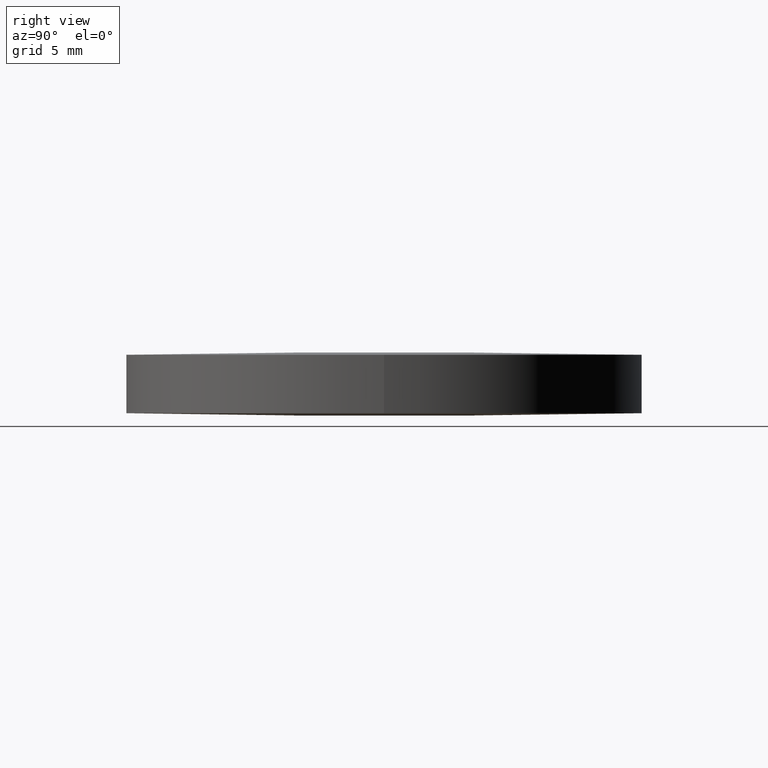
[diagram: clean part render]
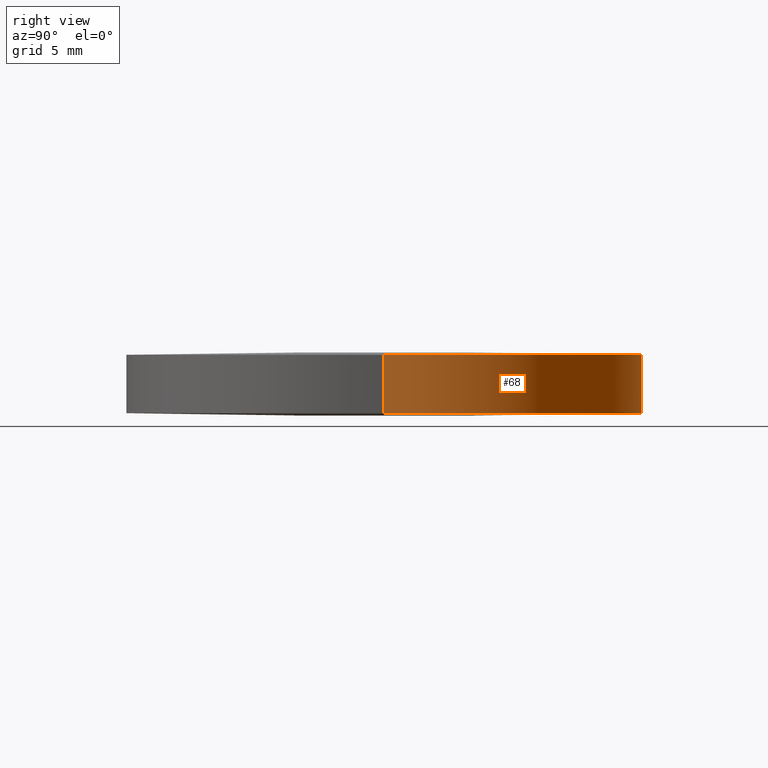
[diagram: same view with one face highlighted and labeled with its STEP entity id]
A machine part, right view. The second image highlights one B-rep face of the part: STEP entity #68.
In plain terms, the highlighted cylindrical surface (partial cylindrical patch) has radius 19.05 mm, axis along (0, 0, 1).
Its self-contained STEP definition (entity closure, byte-faithful):
#10 = EDGE_CURVE ( 'NONE', #291, #283, #122, .T. ) ;
#12 = CARTESIAN_POINT ( 'NONE',  ( 19.04999999999999700, -8.881784197001250400E-016, 0.1907393743477660000 ) ) ;
#17 = EDGE_CURVE ( 'NONE', #291, #289, #178, .T. ) ;
#25 = DIRECTION ( 'NONE',  ( 1.000000000000000000, 0.0000000000000000000, 0.0000000000000000000 ) ) ;
#26 = DIRECTION ( 'NONE',  ( 1.000000000000000000, 0.0000000000000000000, 0.0000000000000000000 ) ) ;
#34 = VERTEX_POINT ( 'NONE', #47 ) ;
#39 = ORIENTED_EDGE ( 'NONE', *, *, #10, .F. ) ;
#40 = CARTESIAN_POINT ( 'NONE',  ( -4.662936703425659800E-015, -8.881784197001250400E-016, 0.1907393743477660000 ) ) ;
#45 = CARTESIAN_POINT ( 'NONE',  ( 19.04999999999999700, -8.881784197001250400E-016, 0.1907393743477660000 ) ) ;
#47 = CARTESIAN_POINT ( 'NONE',  ( 19.04999999999999700, -8.881784197001250400E-016, 4.509260625652229800 ) ) ;
#51 = CYLINDRICAL_SURFACE ( 'NONE', #284, 19.05000000000000100 ) ;
#68 = ADVANCED_FACE ( 'NONE', ( #115 ), #51, .T. ) ;
#69 = EDGE_CURVE ( 'NONE', #119, #34, #226, .T. ) ;
#70 = ORIENTED_EDGE ( 'NONE', *, *, #102, .T. ) ;
#71 = CARTESIAN_POINT ( 'NONE',  ( -4.662936703425659800E-015, -8.881784197001250400E-016, 0.1907393743477660000 ) ) ;
#72 = DIRECTION ( 'NONE',  ( 0.0000000000000000000, 0.0000000000000000000, 1.000000000000000000 ) ) ;
#75 = AXIS2_PLACEMENT_3D ( 'NONE', #150, #85, #26 ) ;
#81 = VECTOR ( 'NONE', #72, 1000.000000000000000 ) ;
#85 = DIRECTION ( 'NONE',  ( -0.0000000000000000000, -0.0000000000000000000, -1.000000000000000000 ) ) ;
#91 = EDGE_CURVE ( 'NONE', #283, #119, #126, .T. ) ;
#102 = EDGE_CURVE ( 'NONE', #271, #34, #240, .T. ) ;
#107 = CARTESIAN_POINT ( 'NONE',  ( -19.05000000000000400, 1.444773732675583000E-015, 4.509260625652229800 ) ) ;
#108 = CARTESIAN_POINT ( 'NONE',  ( -1.212149162115420200E-013, 19.05000000000057600, 0.1907393743477681600 ) ) ;
#115 = FACE_OUTER_BOUND ( 'NONE', #227, .T. ) ;
#118 = CIRCLE ( 'NONE', #212, 19.05000000000000100 ) ;
#119 = VERTEX_POINT ( 'NONE', #12 ) ;
#122 = CIRCLE ( 'NONE', #152, 19.05000000000000100 ) ;
#126 = CIRCLE ( 'NONE', #294, 19.05000000000000100 ) ;
#130 = ORIENTED_EDGE ( 'NONE', *, *, #91, .F. ) ;
#150 = CARTESIAN_POINT ( 'NONE',  ( -4.662936703425659800E-015, -8.881784197001250400E-016, 4.509260625652229800 ) ) ;
#152 = AXIS2_PLACEMENT_3D ( 'NONE', #71, #208, #272 ) ;
#168 = DIRECTION ( 'NONE',  ( 0.0000000000000000000, 0.0000000000000000000, 1.000000000000000000 ) ) ;
#170 = ORIENTED_EDGE ( 'NONE', *, *, #69, .F. ) ;
#171 = DIRECTION ( 'NONE',  ( 1.000000000000000000, 0.0000000000000000000, 0.0000000000000000000 ) ) ;
#178 = LINE ( 'NONE', #250, #277 ) ;
#180 = CARTESIAN_POINT ( 'NONE',  ( -19.05000000000000400, 1.444773732675583000E-015, 0.1907393743477660000 ) ) ;
#181 = DIRECTION ( 'NONE',  ( -0.0000000000000000000, -0.0000000000000000000, -1.000000000000000000 ) ) ;
#184 = DIRECTION ( 'NONE',  ( 1.000000000000000000, 0.0000000000000000000, 0.0000000000000000000 ) ) ;
#198 = DIRECTION ( 'NONE',  ( -0.0000000000000000000, -0.0000000000000000000, -1.000000000000000000 ) ) ;
#199 = EDGE_CURVE ( 'NONE', #289, #271, #118, .T. ) ;
#201 = CARTESIAN_POINT ( 'NONE',  ( -4.662936703425659800E-015, -8.881784197001250400E-016, 4.509260625652229800 ) ) ;
#205 = ORIENTED_EDGE ( 'NONE', *, *, #199, .T. ) ;
#208 = DIRECTION ( 'NONE',  ( -0.0000000000000000000, -0.0000000000000000000, -1.000000000000000000 ) ) ;
#209 = DIRECTION ( 'NONE',  ( 0.0000000000000000000, 0.0000000000000000000, 1.000000000000000000 ) ) ;
#212 = AXIS2_PLACEMENT_3D ( 'NONE', #201, #198, #184 ) ;
#218 = CARTESIAN_POINT ( 'NONE',  ( -4.662936703425659800E-015, -8.881784197001250400E-016, 0.1907393743477660000 ) ) ;
#226 = LINE ( 'NONE', #45, #81 ) ;
#227 = EDGE_LOOP ( 'NONE', ( #39, #237, #205, #70, #170, #130 ) ) ;
#237 = ORIENTED_EDGE ( 'NONE', *, *, #17, .T. ) ;
#240 = CIRCLE ( 'NONE', #75, 19.05000000000000100 ) ;
#250 = CARTESIAN_POINT ( 'NONE',  ( -19.05000000000000400, 1.444773732675583000E-015, 0.1907393743477660000 ) ) ;
#271 = VERTEX_POINT ( 'NONE', #279 ) ;
#272 = DIRECTION ( 'NONE',  ( 1.000000000000000000, 0.0000000000000000000, 0.0000000000000000000 ) ) ;
#277 = VECTOR ( 'NONE', #168, 1000.000000000000000 ) ;
#279 = CARTESIAN_POINT ( 'NONE',  ( 1.212149162115420400E-013, 19.04999999999766700, 4.509260625652248500 ) ) ;
#283 = VERTEX_POINT ( 'NONE', #108 ) ;
#284 = AXIS2_PLACEMENT_3D ( 'NONE', #40, #209, #171 ) ;
#289 = VERTEX_POINT ( 'NONE', #107 ) ;
#291 = VERTEX_POINT ( 'NONE', #180 ) ;
#294 = AXIS2_PLACEMENT_3D ( 'NONE', #218, #181, #25 ) ;